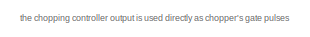
[diagram: root canvas - part 1/2, top left region]
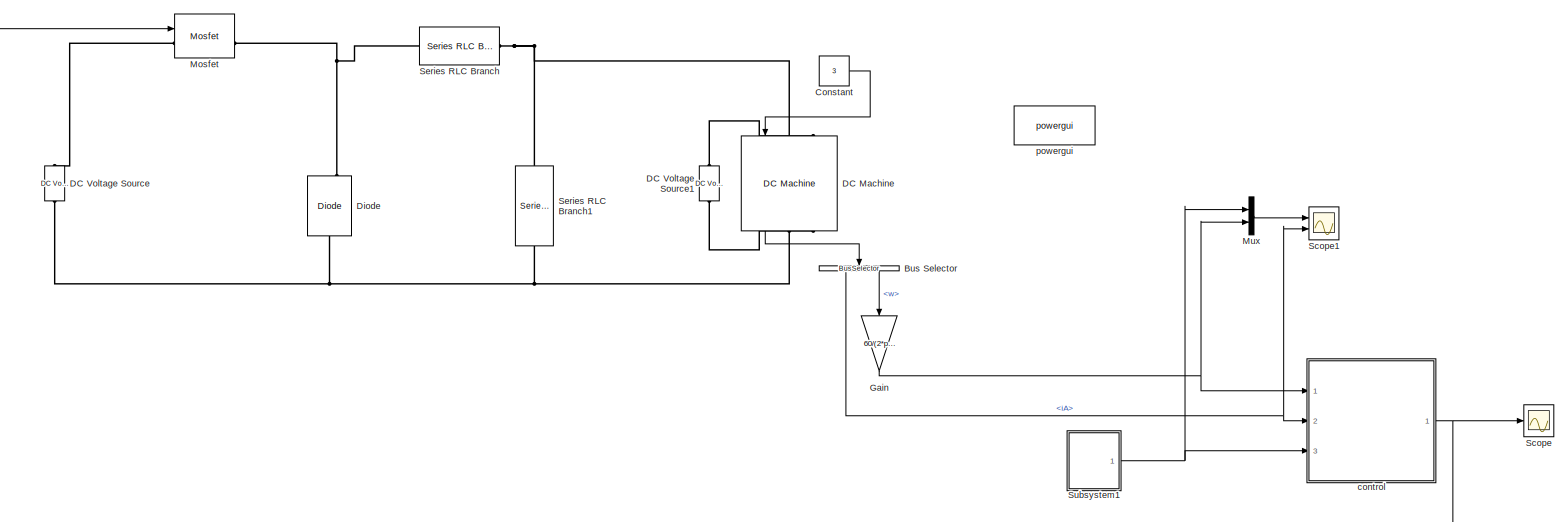
[diagram: root canvas - part 2/2, most of the canvas]
MODEL slx_5fbb9d465640
KIND model
CONFIG AbsTol = auto
CONFIG EnableMultiTasking = off
CONFIG FixedStep = auto
CONFIG MaxStep = auto
CONFIG MinStep = auto
CONFIG RelTol = 1e-3
CONFIG SampleTimeConstraint = Unconstrained
CONFIG Solver = VariableStepAuto
CONFIG SolverName = VariableStepAuto
CONFIG StartTime = 0.0
CONFIG StopTime = 5
BLOCK [BusSelector] Bus Selector
  NameLocation = left
  OutputSignals = iA,w
  Ports = [1, 2]
BLOCK [Constant] Constant
  Value = 3
BLOCK [Reference] DC Machine  REF=powerlib/Machines/DC Machine
  NameLocation = left
  Ports = [1, 1, 0, 0, 0, 2, 2]
  SourceBlock = powerlib/Machines/DC Machine
  SourceProductBaseCode = PS
  SourceType = DC machine
BLOCK [Reference] DC Voltage Source  REF=powerlib/Electrical
Sources/DC Voltage Source
  NameLocation = right
  Ports = [0, 0, 0, 0, 0, 1, 1]
  SourceBlock = powerlib/Electrical\nSources/DC Voltage Source
  SourceProductBaseCode = PS
  SourceType = DC Voltage Source
BLOCK [Reference] DC Voltage Source1  REF=powerlib/Electrical
Sources/DC Voltage Source
  NameLocation = right
  Ports = [0, 0, 0, 0, 0, 1, 1]
  SourceBlock = powerlib/Electrical\nSources/DC Voltage Source
  SourceProductBaseCode = PS
  SourceType = DC Voltage Source
BLOCK [Reference] Diode  REF=powerlib/Power
Electronics/Diode
  NameLocation = right
  Ports = [0, 1, 0, 0, 0, 1, 1]
  SourceBlock = powerlib/Power\nElectronics/Diode
  SourceProductBaseCode = PS
  SourceType = Diode
BLOCK [Gain] Gain
  Gain = 60/(2*pi)
  NameLocation = left
BLOCK [Reference] Mosfet  REF=powerlib/Power
Electronics/Mosfet
  Ports = [1, 1, 0, 0, 0, 1, 1]
  SourceBlock = powerlib/Power\nElectronics/Mosfet
  SourceProductBaseCode = PS
  SourceType = Mosfet
BLOCK [Mux] Mux
  DisplayOption = bar
  Inputs = 2
  Ports = [2, 1]
BLOCK [Scope] Scope
  Floating = off
  NumInputPorts = 1
  Ports = [1]
  ScopeSpecificationString = Simulink.scopes.TimeScopeBlockCfg('CurrentConfiguration', extmgr.ConfigurationSet(extmgr.Configuration('Core','General UI',true),extmgr.Configuration('Core','Source UI',true),extmgr.Configuration('Sources','WiredSimulink',true),extmgr.Configuration('Visuals','Time Domain',true,'SerializedDisplays',{struct('MinYLimReal','-0.125','MaxYLimReal','1.125','YLabelReal','','MinYLimMag','0.00000','MaxYLimM...<+1392ch>
BLOCK [Scope] Scope1
  Floating = off
  NumInputPorts = 2
  Ports = [2]
  ScopeSpecificationString = Simulink.scopes.TimeScopeBlockCfg('CurrentConfiguration', extmgr.ConfigurationSet(extmgr.Configuration('Core','General UI',true),extmgr.Configuration('Core','Source UI',true),extmgr.Configuration('Sources','WiredSimulink',true,'DataLoggingVariableName','ScopeData1'),extmgr.Configuration('Visuals','Time Domain',true,'SerializedDisplays',{struct('MinYLimReal','-219.34636','MaxYLimReal','1980.52923',...<+2006ch>
BLOCK [Reference] Series RLC Branch  REF=powerlib/Elements/Series RLC Branch
  Ports = [0, 0, 0, 0, 0, 1, 1]
  SourceBlock = powerlib/Elements/Series RLC Branch
  SourceProductBaseCode = PS
  SourceType = Series RLC Branch
BLOCK [Reference] Series RLC Branch1  REF=powerlib/Elements/Series RLC Branch
  NameLocation = left
  Ports = [0, 0, 0, 0, 0, 1, 1]
  SourceBlock = powerlib/Elements/Series RLC Branch
  SourceProductBaseCode = PS
  SourceType = Series RLC Branch
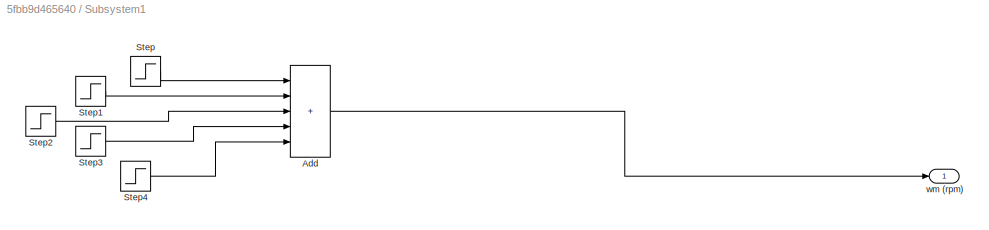
BLOCK [SubSystem] Subsystem1
  Ports = [0, 1]
  RequestExecContextInheritance = off
BLOCK [Sum] Subsystem1/Add
  IconShape = rectangular
  Inputs = +++++
  Ports = [5, 1]
BLOCK [Step] Subsystem1/Step
  After = 0
  Before = 1600
  SampleTime = 0
  Time = 3
BLOCK [Step] Subsystem1/Step1
  After = 150
  SampleTime = 0
BLOCK [Step] Subsystem1/Step2
  After = -450
  SampleTime = 0
  Time = 2
BLOCK [Step] Subsystem1/Step3
  After = 350
  SampleTime = 0
  Time = 3
BLOCK [Step] Subsystem1/Step4
  After = 1500
  SampleTime = 0
  Time = 4
BLOCK [Outport] Subsystem1/wm (rpm)
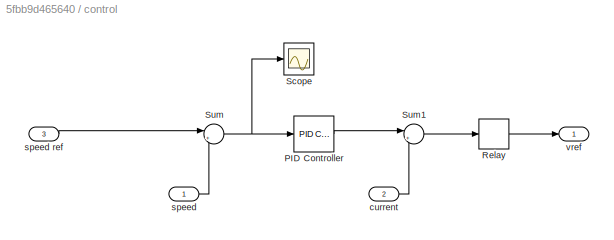
BLOCK [SubSystem] control
  Ports = [3, 1]
  RequestExecContextInheritance = off
BLOCK [Reference] control/PID Controller  REF=simulink/Continuous/PID Controller
  Ports = [1, 1]
  SourceBlock = simulink/Continuous/PID Controller
  SourceProductBaseCode = SL
  SourceType = PID 1dof
BLOCK [Relay] control/Relay
  OffSwitchValue = 0.5
  OnSwitchValue = 1.5
BLOCK [Scope] control/Scope
  Floating = off
  NumInputPorts = 1
  Ports = [1]
  ScopeSpecificationString = Simulink.scopes.TimeScopeBlockCfg('CurrentConfiguration', extmgr.ConfigurationSet(extmgr.Configuration('Core','General UI',true),extmgr.Configuration('Core','Source UI',true),extmgr.Configuration('Sources','WiredSimulink',true,'DataLoggingVariableName','ScopeData2'),extmgr.Configuration('Visuals','Time Domain',true,'SerializedDisplays',{struct('MinYLimReal','-1605.51444','MaxYLimReal','1955.45583'...<+1410ch>
BLOCK [Sum] control/Sum
  Inputs = |+-
  Ports = [2, 1]
BLOCK [Sum] control/Sum1
  Inputs = |+-
  Ports = [2, 1]
BLOCK [Inport] control/current
  Port = 2
BLOCK [Inport] control/speed
BLOCK [Inport] control/speed ref
  Port = 3
BLOCK [Outport] control/vref
BLOCK [Reference] powergui  REF=powerlib/powergui
  Ports = []
  Priority = 1
  SourceBlock = powerlib/powergui
  SourceProductBaseCode = PS
  SourceType = PSB option menu block
ANNOTATION (root): the chopping controller output is used directly as chopper's gate pulses
NET Bus Selector:1 -> Scope1:2, control:2
LINE Bus Selector:2 -> Gain:1
LINE Constant:1 -> DC Machine:1
LINE DC Machine:1 -> Bus Selector:1
NET Gain:1 -> Mux:2, control:1
LINE Mux:1 -> Scope1:1
LINE Subsystem1/Add:1 -> Subsystem1/wm (rpm):1
LINE Subsystem1/Step1:1 -> Subsystem1/Add:2
LINE Subsystem1/Step2:1 -> Subsystem1/Add:3
LINE Subsystem1/Step3:1 -> Subsystem1/Add:4
LINE Subsystem1/Step4:1 -> Subsystem1/Add:5
LINE Subsystem1/Step:1 -> Subsystem1/Add:1
NET Subsystem1:1 -> Mux:1, control:3
LINE control/PID Controller:1 -> control/Sum1:1
LINE control/Relay:1 -> control/vref:1
LINE control/Sum1:1 -> control/Relay:1
NET control/Sum:1 -> control/PID Controller:1, control/Scope:1
LINE control/current:1 -> control/Sum1:2
LINE control/speed ref:1 -> control/Sum:1
LINE control/speed:1 -> control/Sum:2
NET control:1 -> Mosfet:1, Scope:1
PNET net1: DC Machine:LConn1 -- Series RLC Branch1:LConn1 -- Series RLC Branch:RConn1
PLINE DC Machine:LConn2 -- DC Voltage Source1:RConn1
PNET net2: DC Machine:RConn1 -- DC Voltage Source:LConn1 -- Diode:LConn1 -- Series RLC Branch1:RConn1
PLINE DC Machine:RConn2 -- DC Voltage Source1:LConn1
PLINE DC Voltage Source:RConn1 -- Mosfet:LConn1
PNET net3: Diode:RConn1 -- Mosfet:RConn1 -- Series RLC Branch:LConn1
note: NET lines group one-source signal fan-out (src -> all destinations, sorted); 1:1 wires keep LINE; PNET lines group multi-terminal physical nets as a canonical sorted terminal list (undirected conserving connections); 2-terminal nets keep the pairwise PLINE form
